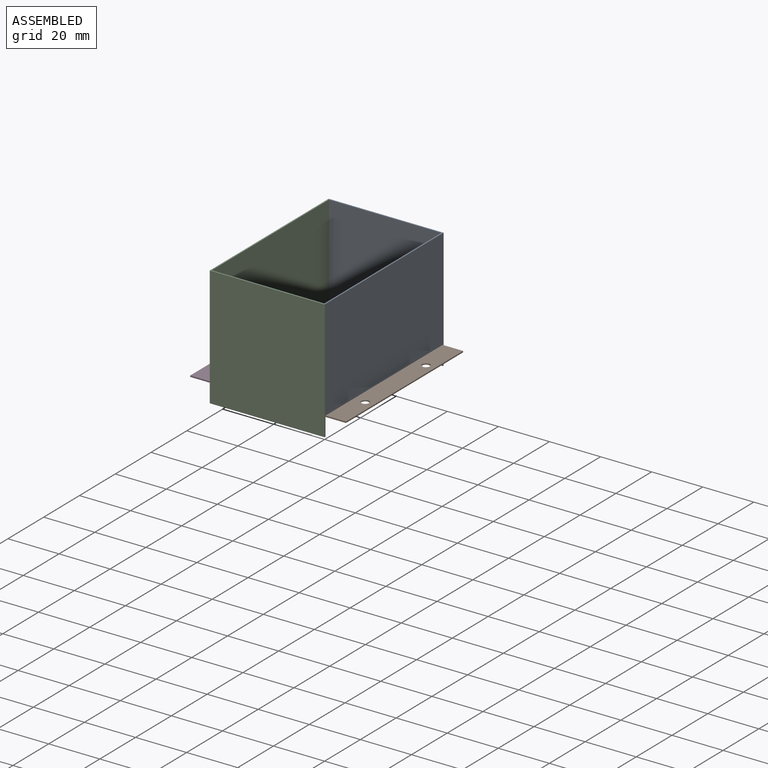
[diagram: assembled view]
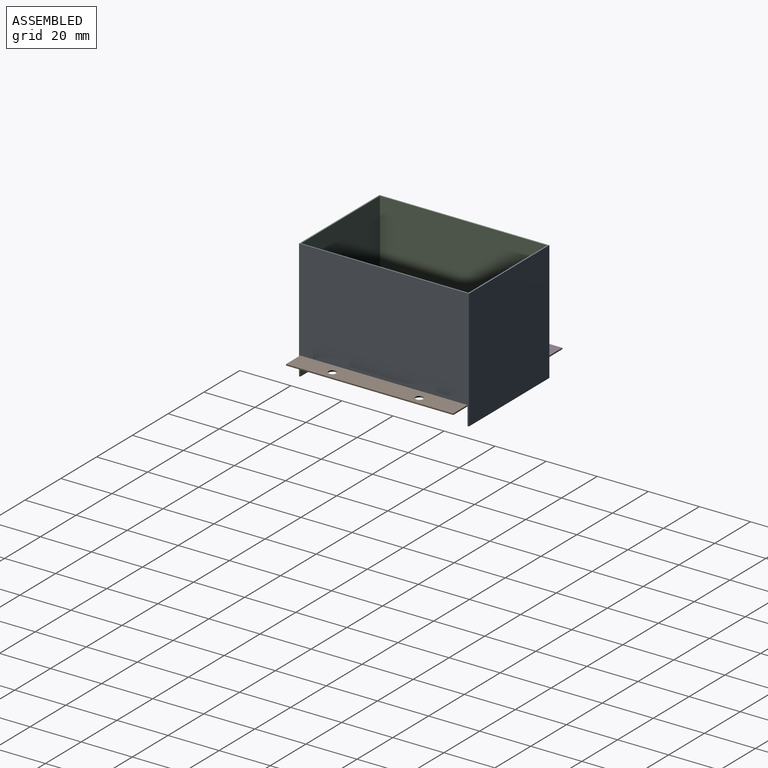
[diagram: assembled view, second angle]
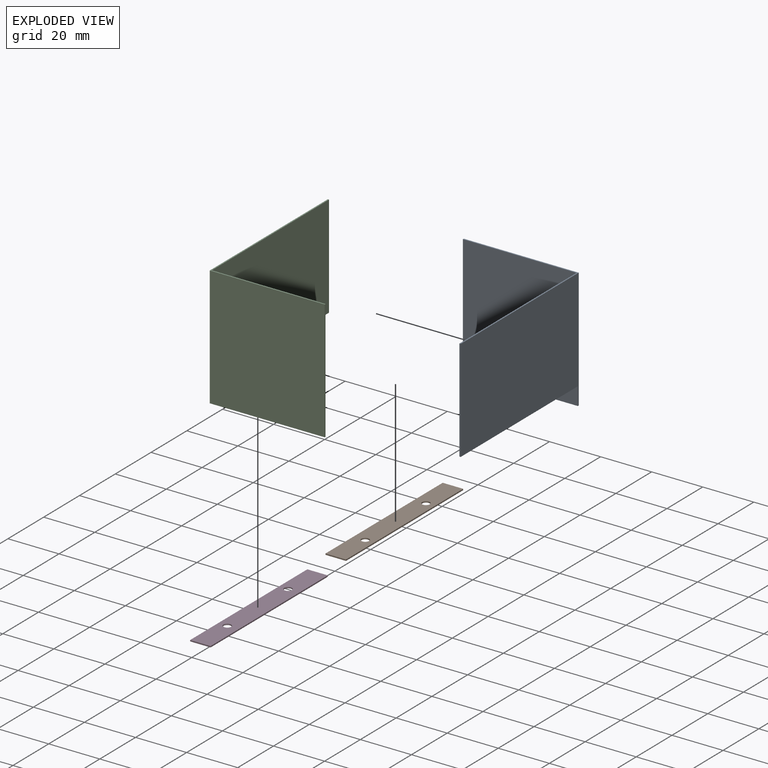
[diagram: exploded view]
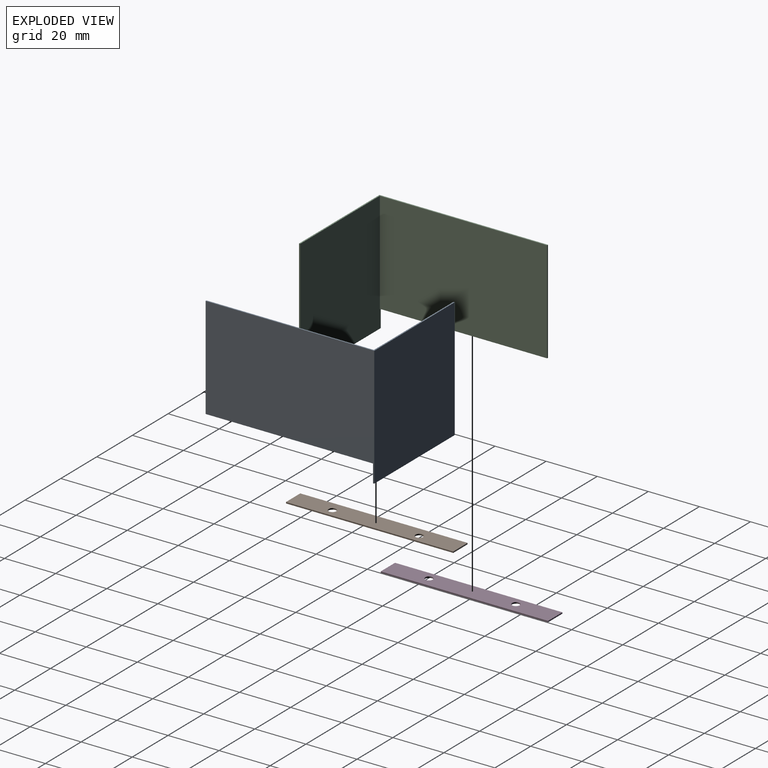
[diagram: exploded view, second angle]
ASSEMBLY  parts=4 mates=3
PART A: 9 faces, bbox 45x66x47 mm
  f0: plane 47x45mm, normal (0,1,0), area 2095mm2, adj f1,f2,f3,f4,f6,f8
  f1: plane 66x47mm, normal (-1,0,0), area 2643.5mm2, adj f0,f2,f4,f5,f6,f7
  f2: plane 45x0.5mm, normal (0,0,-1), area 22.5mm2, adj f0,f1,f3,f5
  f3: plane 47x0.5mm, normal (1,0,0), area 23.5mm2, adj f0,f2,f4,f5
  f4: plane 66x45mm, normal (0,0,1), area 55.3mm2, adj f0,f1,f3,f5,f7,f8
  f5: plane 47x45mm, normal (0,-1,0), area 2115mm2, adj f1,f2,f3,f4
  f6: plane 65.5x0.5mm, normal (0,0,-1), area 32.8mm2, adj f0,f1,f7,f8
  f7: plane 40x0.5mm, normal (0,1,0), area 20mm2, adj f1,f4,f6,f8
  f8: plane 65.5x40mm, normal (1,0,0), area 2620mm2, adj f0,f4,f6,f7
PART B: 8 faces, bbox 8x65.5x0.5 mm
  f0: plane 8x0.5mm, normal (0,1,0), area 4mm2, adj f1,f5,f6,f7
  f1: plane 65.5x0.5mm, normal (-1,0,0), area 32.8mm2, adj f0,f2,f6,f7
  f2: plane 8x0.5mm, normal (0,-1,0), area 4mm2, adj f1,f5,f6,f7
  f3: cylinder r=1.5mm len=3mm, axis (0,0,-1), area 4.7mm2, adj f6,f7
  f4: cylinder r=1.5mm len=3mm, axis (0,0,-1), area 4.7mm2, adj f6,f7
  f5: plane 65.5x0.5mm, normal (1,0,0), area 32.8mm2, adj f0,f2,f6,f7
  f6: plane 65.5x8mm, normal (0,0,1), area 509.9mm2, adj f0,f1,f2,f3,f4,f5
  f7: plane 65.5x8mm, normal (0,0,-1), area 509.9mm2, adj f0,f1,f2,f3,f4,f5
PART C: same geometry as A
PART D: same geometry as B
PLACE A rot(axis=(0,0,1),180deg) t=(27.47,32.51,18.46)mm
PLACE B rot(axis=(0,0,1),180deg) t=(8.49,-9.53,-21.54)mm
PLACE C t=(-17.53,-32.99,18.46)mm
PLACE D t=(1.45,9.05,-21.54)mm
MATE fastened D.f7 <-> C.f6  axis (0,0,1) through (-17.53,32.51,-21.54)mm
MATE fastened A.f4 <-> C.f4  axis (0,0,1) through (27.47,-32.99,18.46)mm
MATE fastened B.f7 <-> A.f6  axis (0,0,1) through (27.47,-32.99,-21.54)mm
